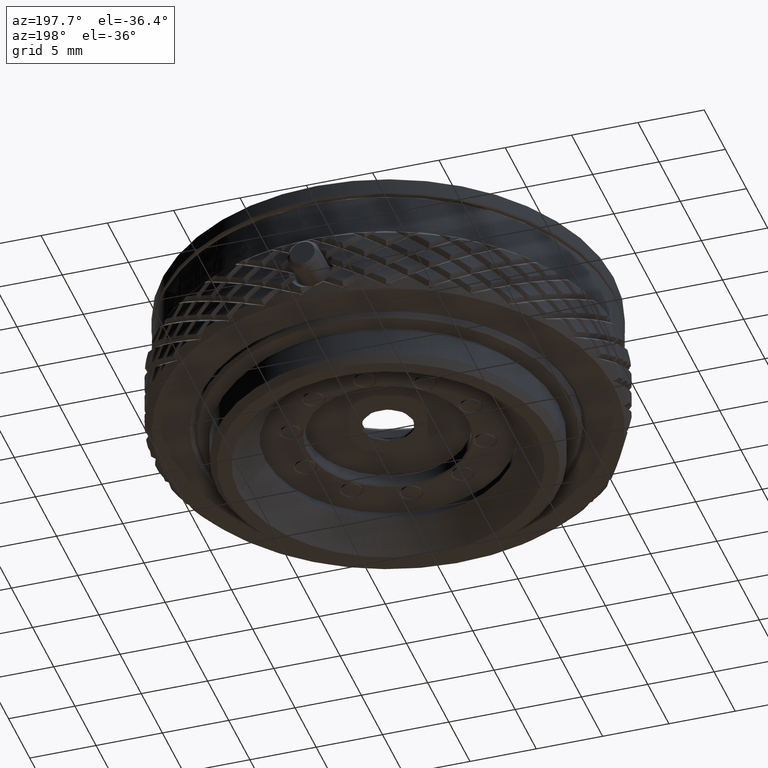
[diagram: clean part render]
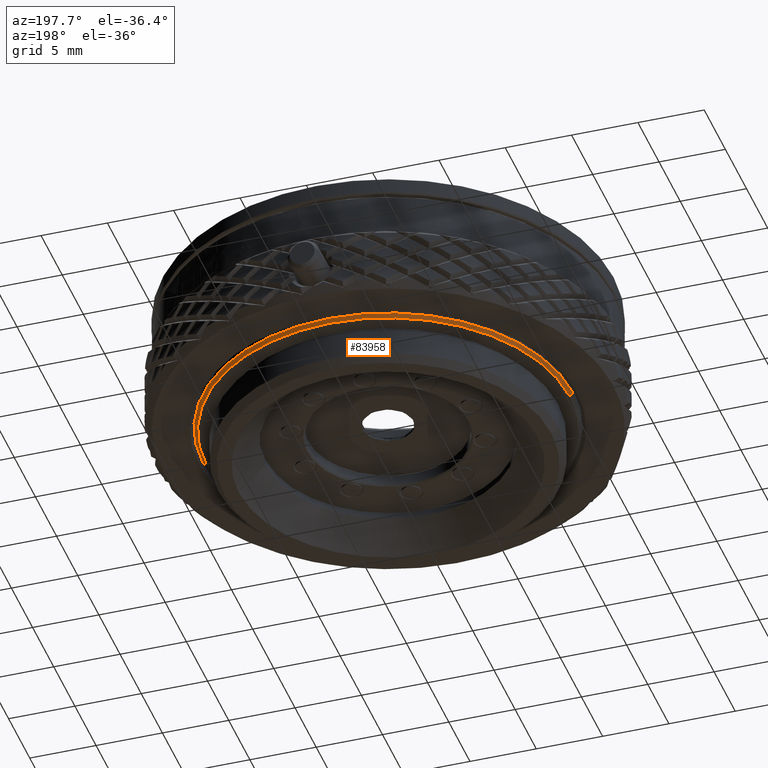
[diagram: same view with one face highlighted and labeled with its STEP entity id]
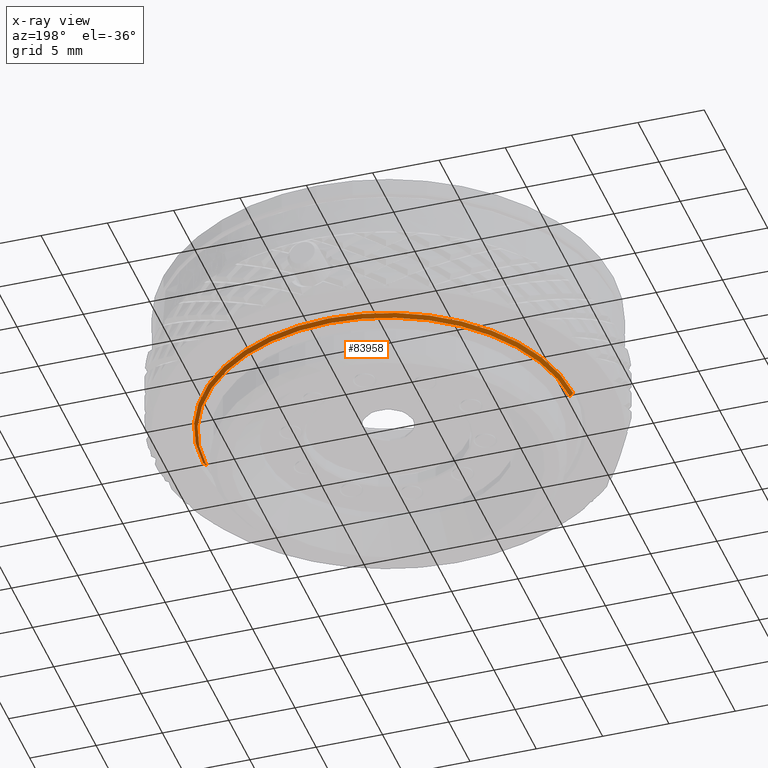
[diagram: x-ray of the same camera — body ghosted, the highlighted face saturated]
A machine part, auxiliary view. The second image highlights one B-rep face of the part: STEP entity #83958.
The next image is the same camera in x-ray: the body ghosted, the highlighted face saturated — about 0% of this face is hidden behind the body in this view.
In plain terms, the highlighted conical surface has half-angle 45 deg.
Its self-contained STEP definition (entity closure, byte-faithful):
#2760 = VERTEX_POINT ( 'NONE', #59554 ) ;
#2800 = EDGE_CURVE ( 'NONE', #42256, #74651, #55340, .T. ) ;
#7801 = VECTOR ( 'NONE', #32873, 1000.000000000000000 ) ;
#8285 = DIRECTION ( 'NONE',  ( 0.000000000000000000, 0.000000000000000000, -1.000000000000000000 ) ) ;
#18149 = AXIS2_PLACEMENT_3D ( 'NONE', #40624, #8285, #66851 ) ;
#21612 = ORIENTED_EDGE ( 'NONE', *, *, #61950, .F. ) ;
#25260 = VECTOR ( 'NONE', #60817, 1000.000000000000000 ) ;
#28433 = EDGE_CURVE ( 'NONE', #50825, #2760, #36964, .T. ) ;
#30959 = AXIS2_PLACEMENT_3D ( 'NONE', #48964, #46935, #79211 ) ;
#32873 = DIRECTION ( 'NONE',  ( 0.7071067811865378028, 0.000000000000000000, 0.7071067811865573427 ) ) ;
#35121 = CARTESIAN_POINT ( 'NONE',  ( 13.94999999999999929, 1.708382284810557565E-15, 3.250000000000002665 ) ) ;
#36964 = CIRCLE ( 'NONE', #52071, 13.94999999999999929 ) ;
#37347 = ORIENTED_EDGE ( 'NONE', *, *, #84601, .T. ) ;
#40480 = FACE_OUTER_BOUND ( 'NONE', #59232, .T. ) ;
#40624 = CARTESIAN_POINT ( 'NONE',  ( 0.000000000000000000, 0.000000000000000000, 3.000000000000000000 ) ) ;
#41464 = LINE ( 'NONE', #54768, #25260 ) ;
#42256 = VERTEX_POINT ( 'NONE', #76511 ) ;
#45600 = CARTESIAN_POINT ( 'NONE',  ( 13.70000000000000462, 0.000000000000000000, 3.000000000000000000 ) ) ;
#46935 = DIRECTION ( 'NONE',  ( 0.000000000000000000, 0.000000000000000000, 1.000000000000000000 ) ) ;
#48964 = CARTESIAN_POINT ( 'NONE',  ( 0.000000000000000000, 0.000000000000000000, 3.000000000000002665 ) ) ;
#50825 = VERTEX_POINT ( 'NONE', #35121 ) ;
#51840 = LINE ( 'NONE', #78958, #7801 ) ;
#52071 = AXIS2_PLACEMENT_3D ( 'NONE', #77652, #58676, #63478 ) ;
#54768 = CARTESIAN_POINT ( 'NONE',  ( -13.70000000000000639, 1.677766114831874567E-15, 3.000000000000002665 ) ) ;
#55004 = ORIENTED_EDGE ( 'NONE', *, *, #28433, .F. ) ;
#55340 = CIRCLE ( 'NONE', #18149, 13.70000000000000462 ) ;
#58676 = DIRECTION ( 'NONE',  ( 0.000000000000000000, 0.000000000000000000, 1.000000000000000000 ) ) ;
#59232 = EDGE_LOOP ( 'NONE', ( #85125, #37347, #55004, #21612 ) ) ;
#59554 = CARTESIAN_POINT ( 'NONE',  ( -13.94999999999999929, 0.000000000000000000, 3.250000000000002665 ) ) ;
#60817 = DIRECTION ( 'NONE',  ( -0.7071067811865378028, 8.659560562354814529E-17, 0.7071067811865573427 ) ) ;
#61950 = EDGE_CURVE ( 'NONE', #74651, #50825, #51840, .T. ) ;
#63478 = DIRECTION ( 'NONE',  ( -1.000000000000000000, 0.000000000000000000, 0.000000000000000000 ) ) ;
#66851 = DIRECTION ( 'NONE',  ( -1.000000000000000000, 0.000000000000000000, 0.000000000000000000 ) ) ;
#74651 = VERTEX_POINT ( 'NONE', #45600 ) ;
#74967 = CONICAL_SURFACE ( 'NONE', #30959, 13.70000000000000639, 0.7853981633974346233 ) ;
#76511 = CARTESIAN_POINT ( 'NONE',  ( -13.70000000000000462, 1.693074199821215869E-15, 3.000000000000000000 ) ) ;
#77652 = CARTESIAN_POINT ( 'NONE',  ( 0.000000000000000000, 0.000000000000000000, 3.250000000000002665 ) ) ;
#78958 = CARTESIAN_POINT ( 'NONE',  ( 13.70000000000000639, 0.000000000000000000, 3.000000000000002665 ) ) ;
#79211 = DIRECTION ( 'NONE',  ( 1.000000000000000000, 0.000000000000000000, 0.000000000000000000 ) ) ;
#83958 = ADVANCED_FACE ( 'NONE', ( #40480 ), #74967, .T. ) ;
#84601 = EDGE_CURVE ( 'NONE', #42256, #2760, #41464, .T. ) ;
#85125 = ORIENTED_EDGE ( 'NONE', *, *, #2800, .F. ) ;